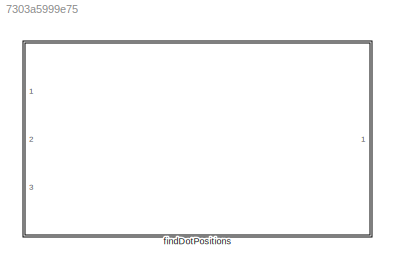
MODEL slx_7303a5999e75
KIND library
CONFIG AbsTol = auto
CONFIG EnableMultiTasking = off
CONFIG FixedStep = auto
CONFIG MaxStep = auto
CONFIG MinStep = auto
CONFIG RelTol = 1e-3
CONFIG SampleTimeConstraint = Unconstrained
CONFIG Solver = VariableStepAuto
CONFIG SolverName = VariableStepAuto
CONFIG StartTime = 0.0
CONFIG StopTime = 10.0
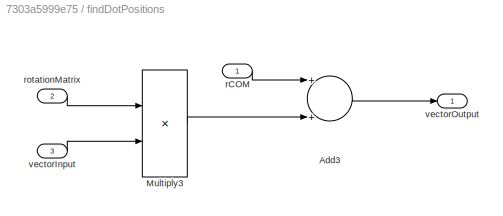
BLOCK [SubSystem] findDotPositions
  Ports = [3, 1]
  RequestExecContextInheritance = off
BLOCK [Sum] findDotPositions/Add3
  InputSameDT = off
  OutDataTypeStr = Inherit: Inherit via internal rule
  Ports = [2, 1]
  SaturateOnIntegerOverflow = off
BLOCK [Product] findDotPositions/Multiply3
  InputSameDT = off
  Multiplication = Matrix(*)
  OutDataTypeStr = Inherit: Inherit via internal rule
  Ports = [2, 1]
  RndMeth = Floor
  SaturateOnIntegerOverflow = off
BLOCK [Inport] findDotPositions/rCOM
  IconDisplay = Port number
BLOCK [Inport] findDotPositions/rotationMatrix
  IconDisplay = Port number
  Port = 2
BLOCK [Inport] findDotPositions/vectorInput
  IconDisplay = Port number
  Port = 3
BLOCK [Outport] findDotPositions/vectorOutput
  IconDisplay = Port number
LINE findDotPositions/Add3:1 -> findDotPositions/vectorOutput:1
LINE findDotPositions/Multiply3:1 -> findDotPositions/Add3:2
LINE findDotPositions/rCOM:1 -> findDotPositions/Add3:1
LINE findDotPositions/rotationMatrix:1 -> findDotPositions/Multiply3:1
LINE findDotPositions/vectorInput:1 -> findDotPositions/Multiply3:2
